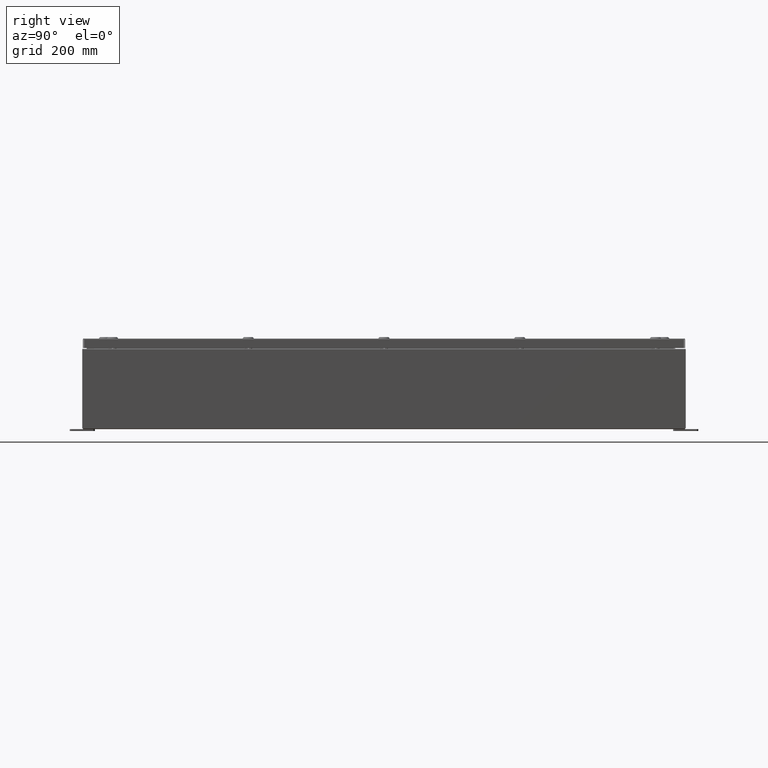
[diagram: clean part render]
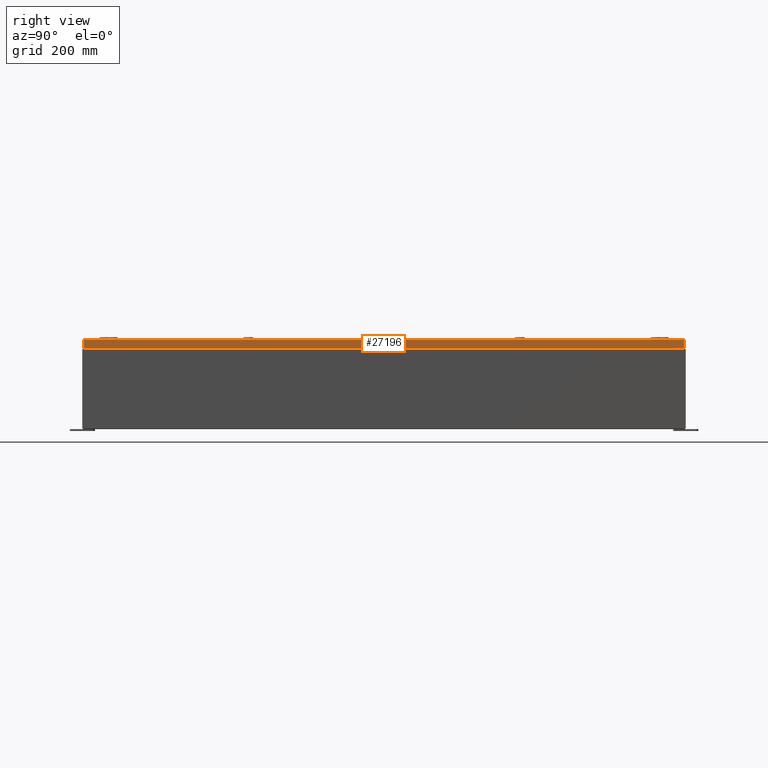
[diagram: same view with one face highlighted and labeled with its STEP entity id]
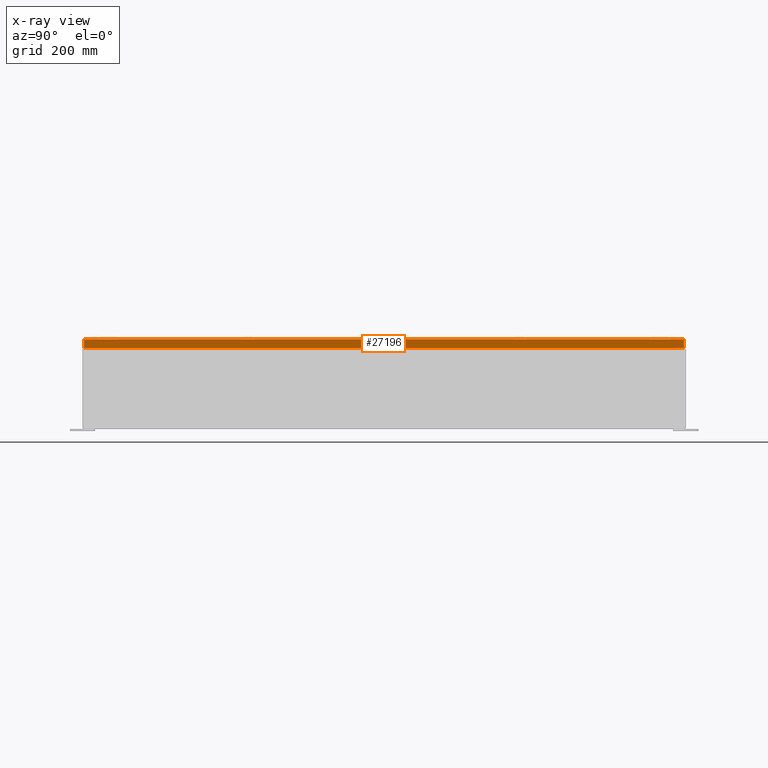
[diagram: x-ray of the same camera — body ghosted, the highlighted face saturated]
A machine part, right view. The second image highlights one B-rep face of the part: STEP entity #27196.
The next image is the same camera in x-ray: the body ghosted, the highlighted face saturated — about 0% of this face is hidden behind the body in this view.
In plain terms, the highlighted planar face has unit normal (1, 0, 0).
Its self-contained STEP definition (entity closure, byte-faithful):
#3863 = VECTOR ( 'NONE', #41336, 39.37007874015748100 ) ;
#6029 = EDGE_CURVE ( 'NONE', #48218, #31267, #7728, .T. ) ;
#7728 = LINE ( 'NONE', #11122, #34468 ) ;
#9299 = ORIENTED_EDGE ( 'NONE', *, *, #38748, .F. ) ;
#11122 = CARTESIAN_POINT ( 'NONE',  ( 17.93750000000000000, 0.0000000000000000000, -0.08770000000000008300 ) ) ;
#14467 = DIRECTION ( 'NONE',  ( -2.532419924601866100E-015, -6.982962677686269100E-015, 1.000000000000000000 ) ) ;
#15795 = CARTESIAN_POINT ( 'NONE',  ( 17.93750000000000000, -29.93749999999998900, -0.9376999999999997600 ) ) ;
#16494 = DIRECTION ( 'NONE',  ( 0.0000000000000000000, -1.000000000000000000, 0.0000000000000000000 ) ) ;
#18867 = CARTESIAN_POINT ( 'NONE',  ( 17.93750000000000000, 0.0000000000000000000, 4.568609605355755400E-014 ) ) ;
#19170 = EDGE_LOOP ( 'NONE', ( #9299, #48947, #62648, #32403 ) ) ;
#19696 = EDGE_CURVE ( 'NONE', #45493, #43437, #54709, .T. ) ;
#23321 = CARTESIAN_POINT ( 'NONE',  ( 17.93750000000000000, -29.84865786437626100, -0.08770000000000008300 ) ) ;
#24213 = DIRECTION ( 'NONE',  ( 2.532419924601866100E-015, 0.0000000000000000000, -1.000000000000000000 ) ) ;
#26751 = CARTESIAN_POINT ( 'NONE',  ( 17.93750000000000000, 29.84865786437627500, -0.08770000000000008300 ) ) ;
#27196 = ADVANCED_FACE ( 'NONE', ( #38789 ), #66753, .T. ) ;
#28013 = AXIS2_PLACEMENT_3D ( 'NONE', #18867, #56217, #24213 ) ;
#28944 = LINE ( 'NONE', #51819, #43159 ) ;
#31267 = VERTEX_POINT ( 'NONE', #23321 ) ;
#32403 = ORIENTED_EDGE ( 'NONE', *, *, #6029, .T. ) ;
#34468 = VECTOR ( 'NONE', #16494, 39.37007874015748100 ) ;
#38748 = EDGE_CURVE ( 'NONE', #43437, #31267, #60743, .T. ) ;
#38789 = FACE_OUTER_BOUND ( 'NONE', #19170, .T. ) ;
#41336 = DIRECTION ( 'NONE',  ( -2.532419924601866100E-015, -6.982962677686269100E-015, 1.000000000000000000 ) ) ;
#43159 = VECTOR ( 'NONE', #14467, 39.37007874015748100 ) ;
#43437 = VERTEX_POINT ( 'NONE', #69224 ) ;
#45493 = VERTEX_POINT ( 'NONE', #51553 ) ;
#47772 = DIRECTION ( 'NONE',  ( 0.0000000000000000000, -1.000000000000000000, 0.0000000000000000000 ) ) ;
#48218 = VERTEX_POINT ( 'NONE', #26751 ) ;
#48947 = ORIENTED_EDGE ( 'NONE', *, *, #19696, .F. ) ;
#51553 = CARTESIAN_POINT ( 'NONE',  ( 17.93750000000000000, 29.84865786437627800, -0.9376999999999997600 ) ) ;
#51819 = CARTESIAN_POINT ( 'NONE',  ( 17.93750000000000000, 29.84865786437627500, 2.541181598995237700E-013 ) ) ;
#54709 = LINE ( 'NONE', #15795, #67278 ) ;
#56217 = DIRECTION ( 'NONE',  ( 1.000000000000000000, 0.0000000000000000000, 2.532419924601866100E-015 ) ) ;
#57975 = EDGE_CURVE ( 'NONE', #45493, #48218, #28944, .T. ) ;
#60743 = LINE ( 'NONE', #68237, #3863 ) ;
#62648 = ORIENTED_EDGE ( 'NONE', *, *, #57975, .T. ) ;
#66753 = PLANE ( 'NONE',  #28013 ) ;
#67278 = VECTOR ( 'NONE', #47772, 39.37007874015748100 ) ;
#68237 = CARTESIAN_POINT ( 'NONE',  ( 17.93750000000000000, -29.84865786437626100, -0.07469999999999980800 ) ) ;
#69224 = CARTESIAN_POINT ( 'NONE',  ( 17.93750000000000000, -29.84865786437625700, -0.9376999999999996400 ) ) ;